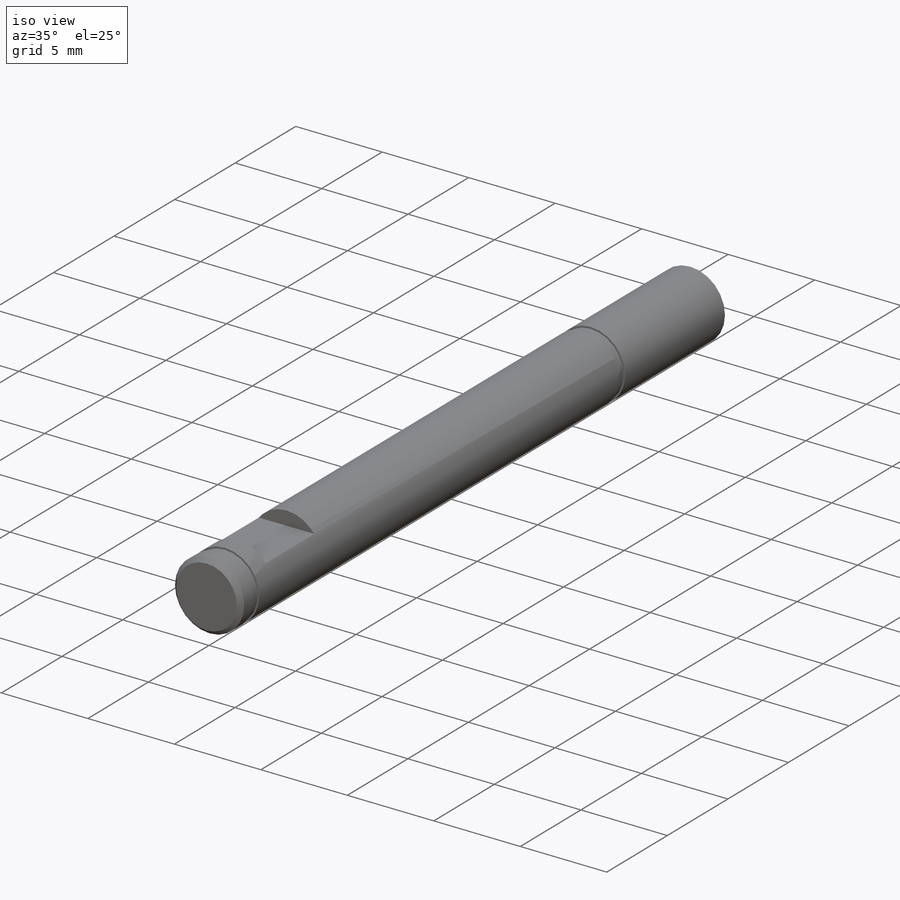
[diagram: iso view]
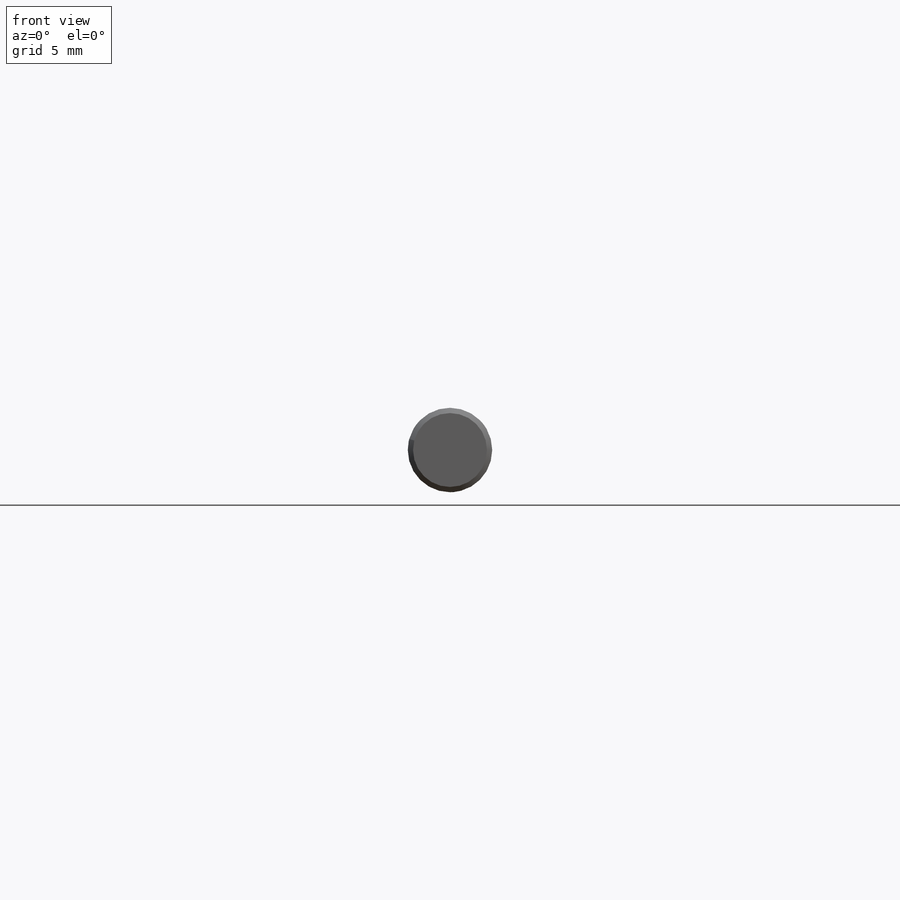
[diagram: front view]
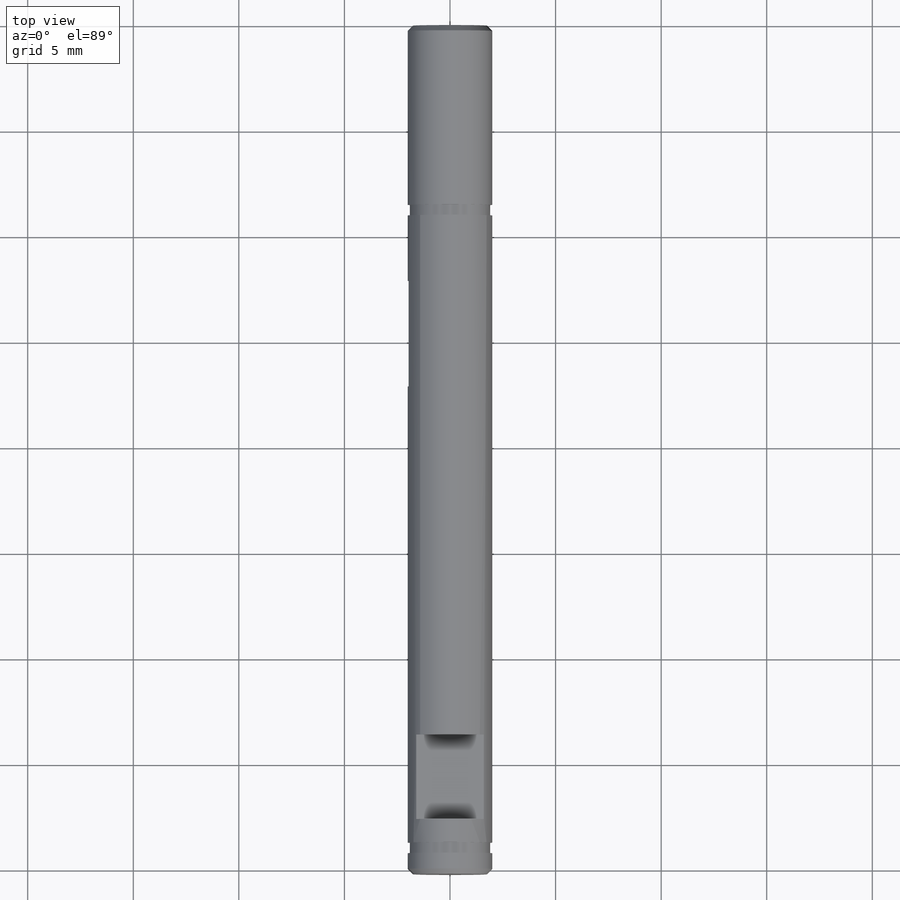
[diagram: top view]
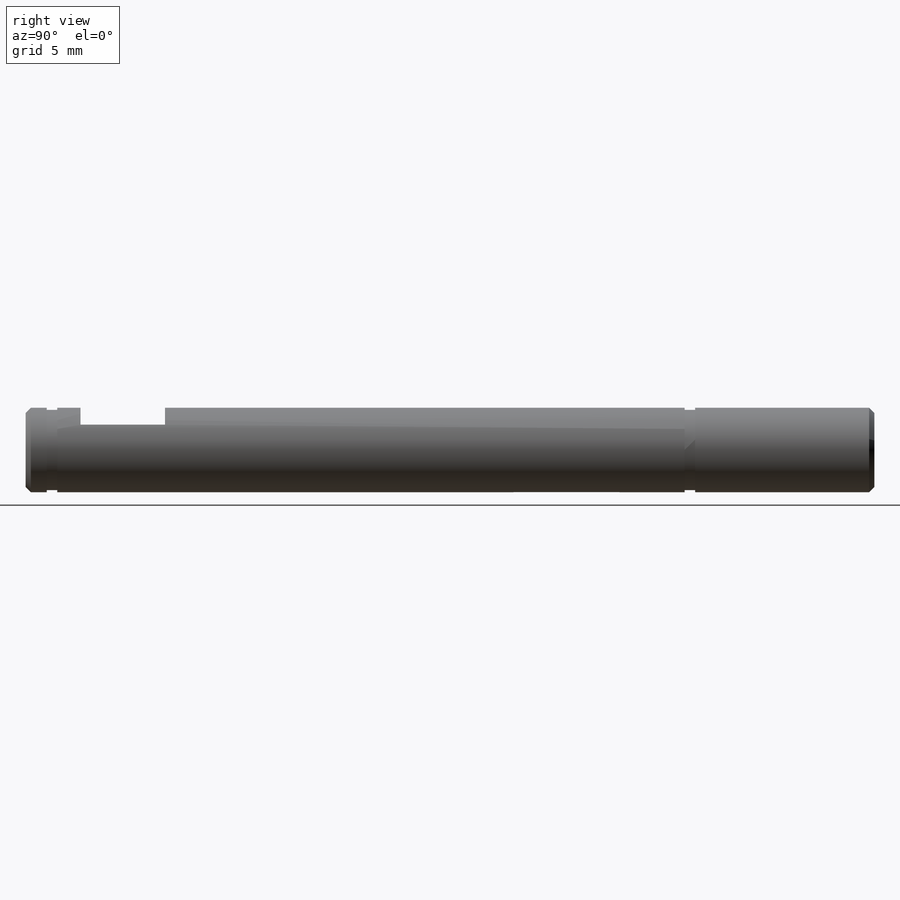
[diagram: right view]
SOLIDWORKS PART (.sldprt)
format: sldprt  version: not decoded by parser v0  size: 308,224 bytes
history: native  units: mm
features: plane x7, sketch x5, cut_extrude x4, chamfer x2, material x1, extrude x1 (+8 scaffold rows collapsed)
feature tree (28):
  scaffold x8  (default folders/planes/origin — collapsed)
  material  "Acier allié inoxydable"
  plane  "Plan de face"
  plane  "Plan de dessus"
  plane  "Plan de droite"
  sketch  "Circle"  dims[D1=~1.898333mm]
  extrude  "Boss.-Extru.1"  Depth=40.2mm
  plane  "PlanMeplatPolulu"  Offset=2.6mm
  sketch  "MeplatPololu"  dims[D1=1.2mm]
  cut_extrude  "Enlèv. mat.-Extru.1"  Depth=4mm
  plane  "PlanMeplatRoueDentee"  Offset=16.51mm
  sketch  "MeplatRoueDentee"  dims[c1.D1=~1.491037mm c1.D2=~2.66594mm c2.D1=1.2mm c2.D2=131.59deg]
  cut_extrude  "Enlèv. mat.-Extru.2"  Depth=5mm
  plane  "PlanGorgeCirclipPolulu"  Offset=1.1mm
  sketch  "GorgeCirclipPolulu"  dims[D1=~1.668724mm]
  cut_extrude  "Enlèv. mat.-Extru.3"  Depth=0.5mm
  plane  "PlanGorgeCirclipPoulie"  Offset=3.1mm
  sketch  "Esquisse1"  dims[D1=~1.715742mm]
  cut_extrude  "Enlèv. mat.-Extru.4"  Depth=0.5mm
  chamfer  "Chanfrein1"  Distance=0.25mm Angle=45deg
  chamfer  "Chanfrein2"  Distance=0.25mm Angle=45deg
decode coverage: 12 of 12 modeling features carry decoded parameters
note: ~ marks probable driven/reference dimensions
note: suppression state not decoded; provenance and decode notes live in map.json
